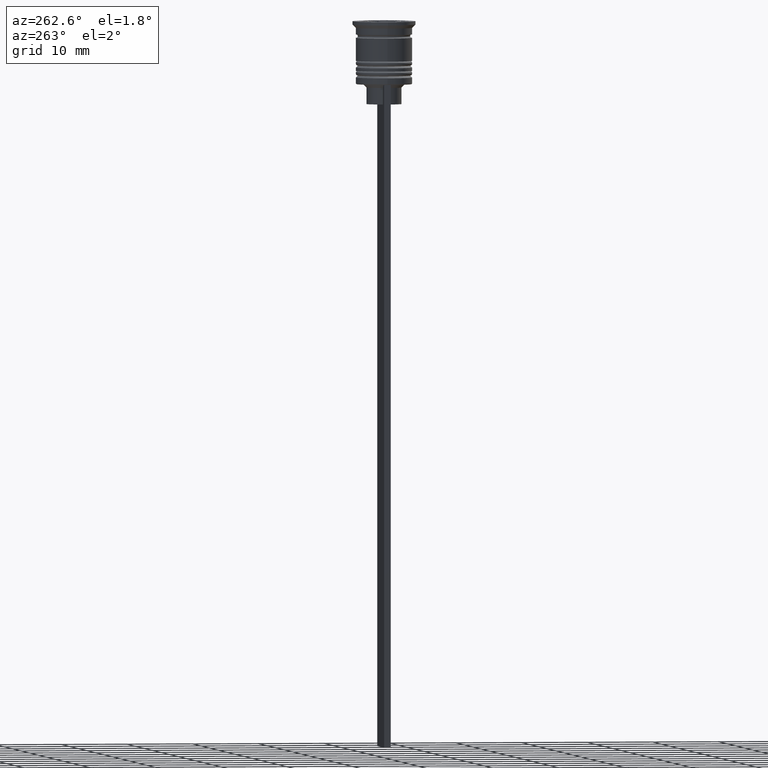
[diagram: clean part render]
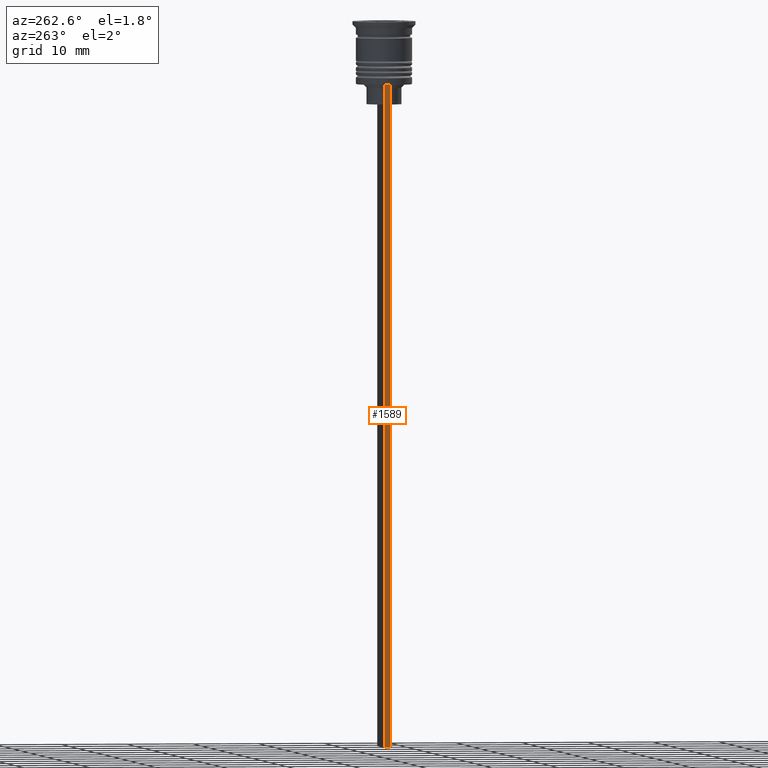
[diagram: same view with one face highlighted and labeled with its STEP entity id]
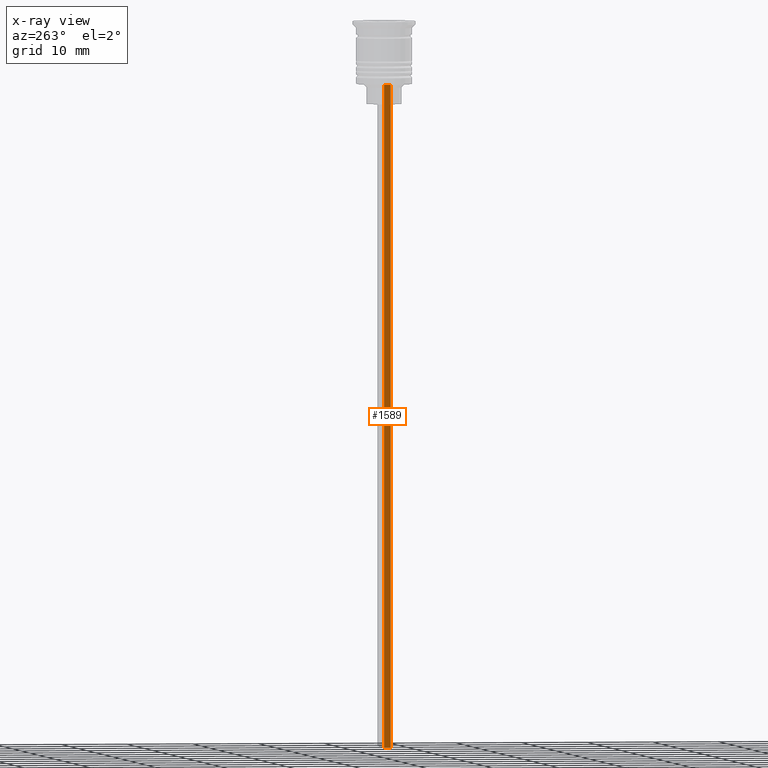
[diagram: x-ray of the same camera — body ghosted, the highlighted face saturated]
A machine part, auxiliary view. The second image highlights one B-rep face of the part: STEP entity #1589.
The next image is the same camera in x-ray: the body ghosted, the highlighted face saturated — about 0% of this face is hidden behind the body in this view.
In plain terms, the highlighted planar face has unit normal (-1, 0, 0).
Its self-contained STEP definition (entity closure, byte-faithful):
#91 = EDGE_CURVE ( 'NONE', #2062, #387, #266, .T. ) ;
#133 = PLANE ( 'NONE',  #2133 ) ;
#159 = ORIENTED_EDGE ( 'NONE', *, *, #91, .F. ) ;
#217 = EDGE_LOOP ( 'NONE', ( #574, #1329, #736, #159 ) ) ;
#218 = DIRECTION ( 'NONE',  ( 0.000000000000000000, 0.000000000000000000, -1.000000000000000000 ) ) ;
#266 = LINE ( 'NONE', #1745, #1073 ) ;
#347 = VERTEX_POINT ( 'NONE', #939 ) ;
#387 = VERTEX_POINT ( 'NONE', #1709 ) ;
#457 = LINE ( 'NONE', #955, #1343 ) ;
#461 = DIRECTION ( 'NONE',  ( 0.000000000000000000, 0.000000000000000000, 1.000000000000000000 ) ) ;
#574 = ORIENTED_EDGE ( 'NONE', *, *, #707, .F. ) ;
#639 = CARTESIAN_POINT ( 'NONE',  ( -3.999999999999994671, -0.5000000000000004441, -9.500000000000000000 ) ) ;
#662 = CARTESIAN_POINT ( 'NONE',  ( -3.999999999999994671, -0.5000000000000004441, -1.437742251701450202 ) ) ;
#707 = EDGE_CURVE ( 'NONE', #347, #2062, #457, .T. ) ;
#736 = ORIENTED_EDGE ( 'NONE', *, *, #878, .F. ) ;
#825 = FACE_OUTER_BOUND ( 'NONE', #217, .T. ) ;
#878 = EDGE_CURVE ( 'NONE', #387, #1191, #1795, .T. ) ;
#939 = CARTESIAN_POINT ( 'NONE',  ( -3.999999999999994671, 0.4999999999999997780, -9.500000000000000000 ) ) ;
#955 = CARTESIAN_POINT ( 'NONE',  ( -3.999999999999994671, -0.5000000000000004441, -9.500000000000000000 ) ) ;
#1060 = CARTESIAN_POINT ( 'NONE',  ( -3.999999999999994671, 0.4999999999999995559, -109.5000000000000000 ) ) ;
#1065 = VECTOR ( 'NONE', #218, 1000.000000000000000 ) ;
#1073 = VECTOR ( 'NONE', #1200, 1000.000000000000000 ) ;
#1190 = LINE ( 'NONE', #1706, #1065 ) ;
#1191 = VERTEX_POINT ( 'NONE', #1060 ) ;
#1200 = DIRECTION ( 'NONE',  ( 0.000000000000000000, 0.000000000000000000, -1.000000000000000000 ) ) ;
#1250 = CARTESIAN_POINT ( 'NONE',  ( -3.999999999999994671, -0.5000000000000004441, -109.5000000000000000 ) ) ;
#1329 = ORIENTED_EDGE ( 'NONE', *, *, #1539, .T. ) ;
#1343 = VECTOR ( 'NONE', #2033, 1000.000000000000000 ) ;
#1539 = EDGE_CURVE ( 'NONE', #347, #1191, #1190, .T. ) ;
#1554 = VECTOR ( 'NONE', #1616, 1000.000000000000000 ) ;
#1572 = DIRECTION ( 'NONE',  ( -1.000000000000000000, 0.000000000000000000, 0.000000000000000000 ) ) ;
#1589 = ADVANCED_FACE ( 'NONE', ( #825 ), #133, .T. ) ;
#1616 = DIRECTION ( 'NONE',  ( 0.000000000000000000, 1.000000000000000000, 0.000000000000000000 ) ) ;
#1706 = CARTESIAN_POINT ( 'NONE',  ( -3.999999999999994671, 0.4999999999999995559, -1.437742251701450202 ) ) ;
#1709 = CARTESIAN_POINT ( 'NONE',  ( -3.999999999999994671, -0.5000000000000004441, -109.5000000000000000 ) ) ;
#1745 = CARTESIAN_POINT ( 'NONE',  ( -3.999999999999994671, -0.5000000000000004441, -1.437742251701450202 ) ) ;
#1795 = LINE ( 'NONE', #1250, #1554 ) ;
#2033 = DIRECTION ( 'NONE',  ( 0.000000000000000000, -1.000000000000000000, 0.000000000000000000 ) ) ;
#2062 = VERTEX_POINT ( 'NONE', #639 ) ;
#2133 = AXIS2_PLACEMENT_3D ( 'NONE', #662, #1572, #461 ) ;